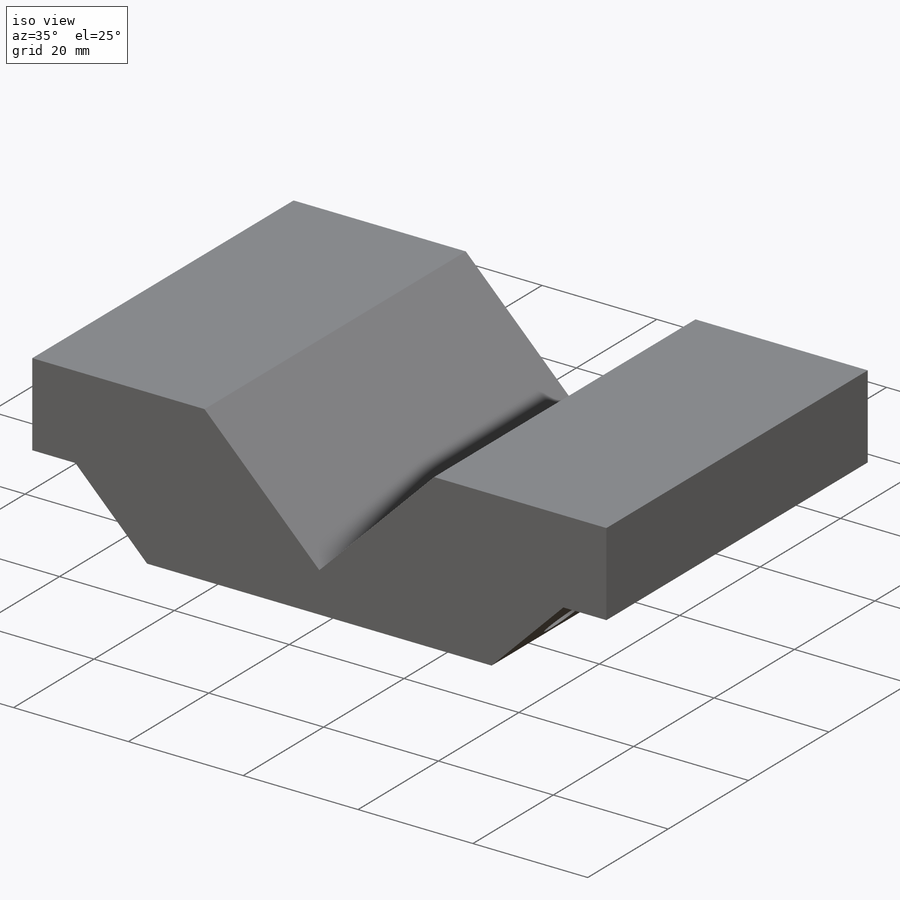
[diagram: iso view]
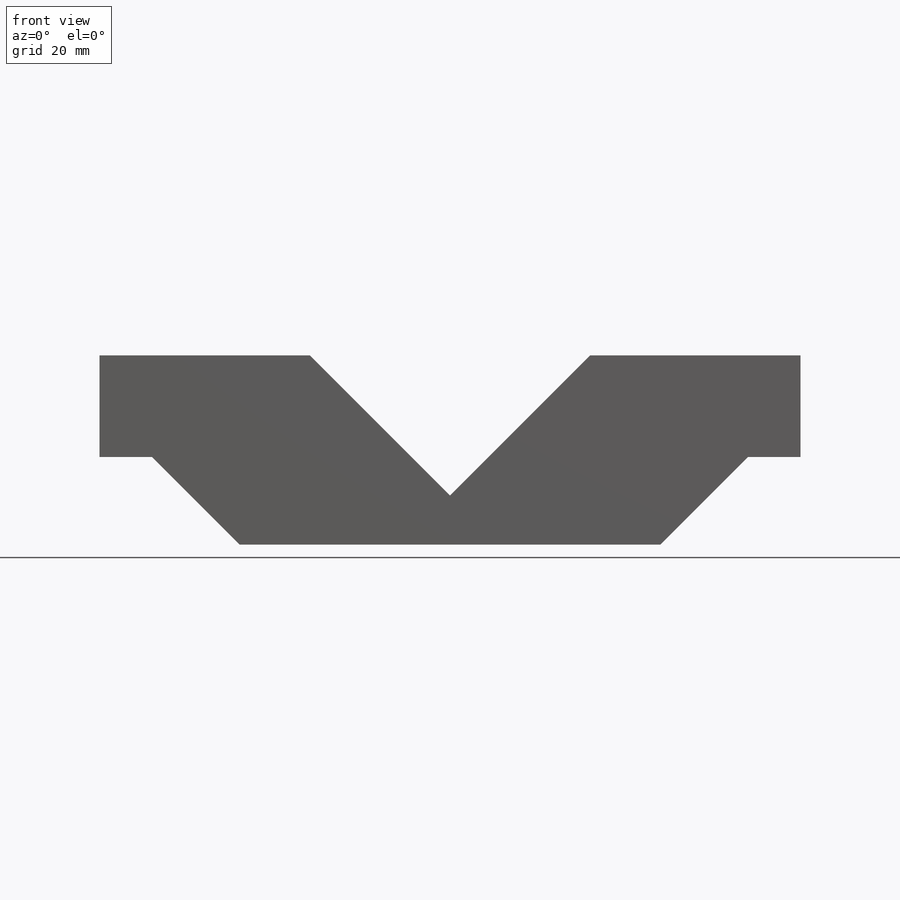
[diagram: front view]
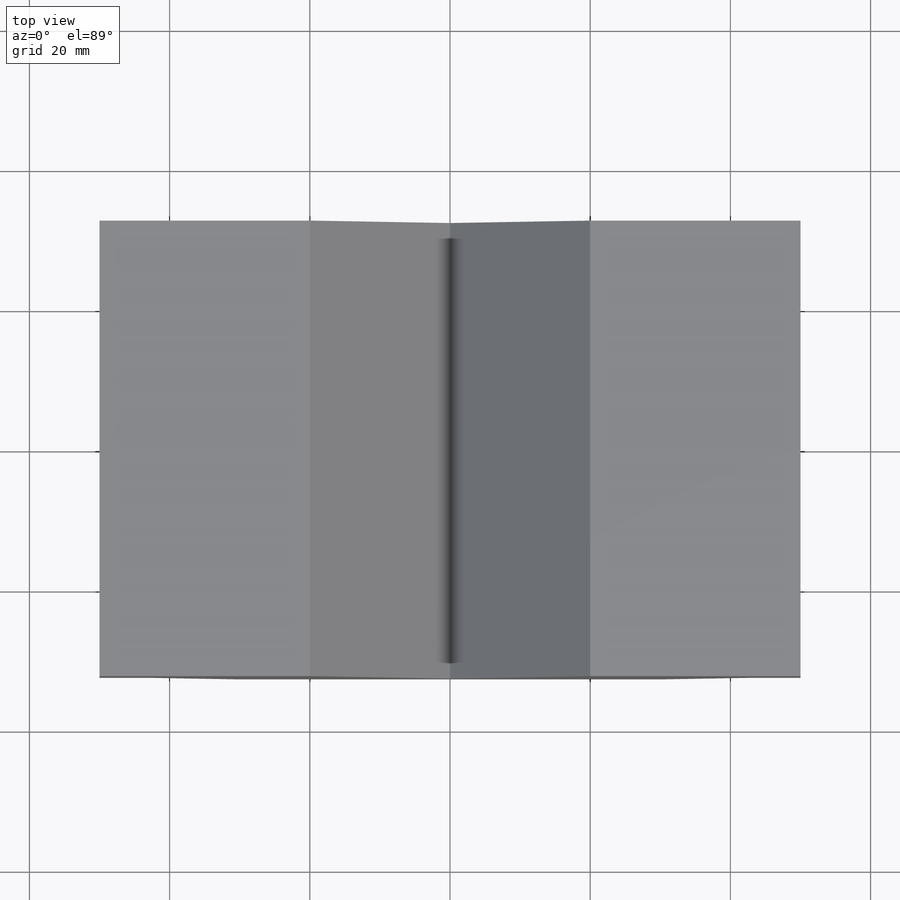
[diagram: top view]
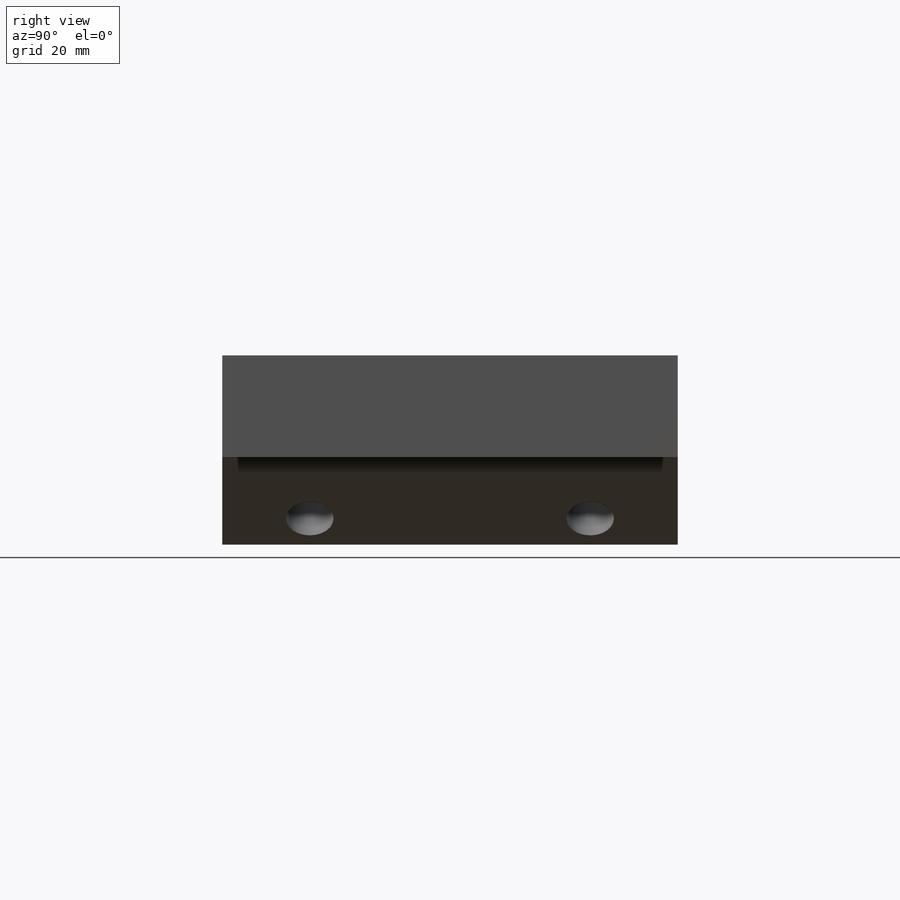
[diagram: right view]
SOLIDWORKS PART (.sldprt)
format: sldprt  version: not decoded by parser v0  size: 193,536 bytes
history: native  units: mm
features: plane x3, sketch x3, thread x2, material x1, extrude x1, hole x1, mirror x1 (+10 scaffold rows collapsed)
feature tree (22):
  scaffold x10  (default folders/planes/origin — collapsed)
  material  "Material <sin especificar>"
  plane  "Alzado"
  plane  "Planta"
  plane  "Vista lateral"
  sketch  "Sketch1"  dims[c1.D1=50.0mm c1.D2=20.0mm c1.D3=~29.956187mm c2.D3=45.0deg c2.D4=30.0mm c2.D5=12.5mm c2.D6=12.5mm c2.D7=27.0mm]
  extrude  "Boss-Extrude1"  Depth=65mm
  hole  "Taladro roscado M86"  Depth=20mm  [1 undecoded]
  sketch  "Croquis13"
  sketch  "Croquis12"  dims[hole-wizard template sketch: 46 standard entries collapsed; hole parameters kept: c15.Diámetro de perforador para roscar=6.8mm c15.Profundidad de perforador para roscar=20.0mm c15.D3=~14.816244mm c15.Ángulo de perforador=118.0deg]
  thread  "Rosca de taladro9"  Diameter=16mm  [1 undecoded]
  thread  "Rosca de taladro10"  Diameter=16mm  [1 undecoded]
  mirror  "Simetría3"
decode coverage: 6 of 8 modeling features carry decoded parameters
note: ~ marks probable driven/reference dimensions
note: 3 parameter values undecoded
note: suppression state not decoded; provenance and decode notes live in map.json
